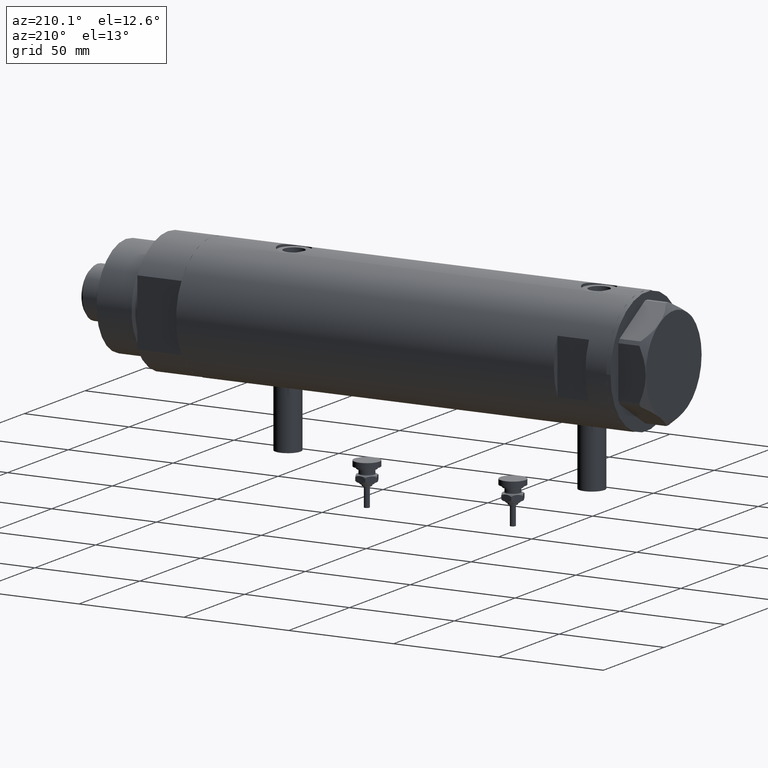
[diagram: clean part render]
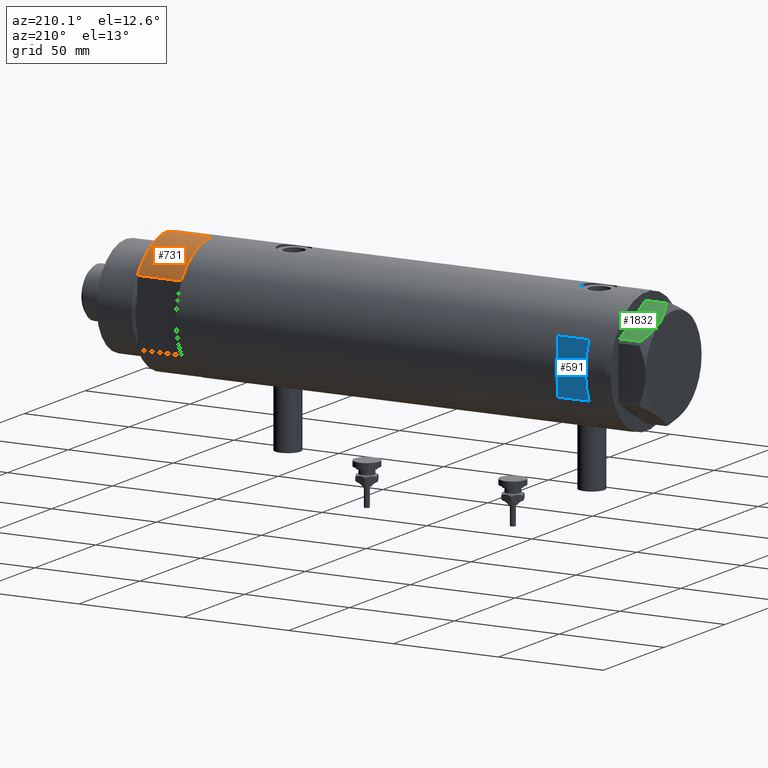
[diagram: same view with three faces highlighted in distinct colors, each labeled with its STEP entity id]
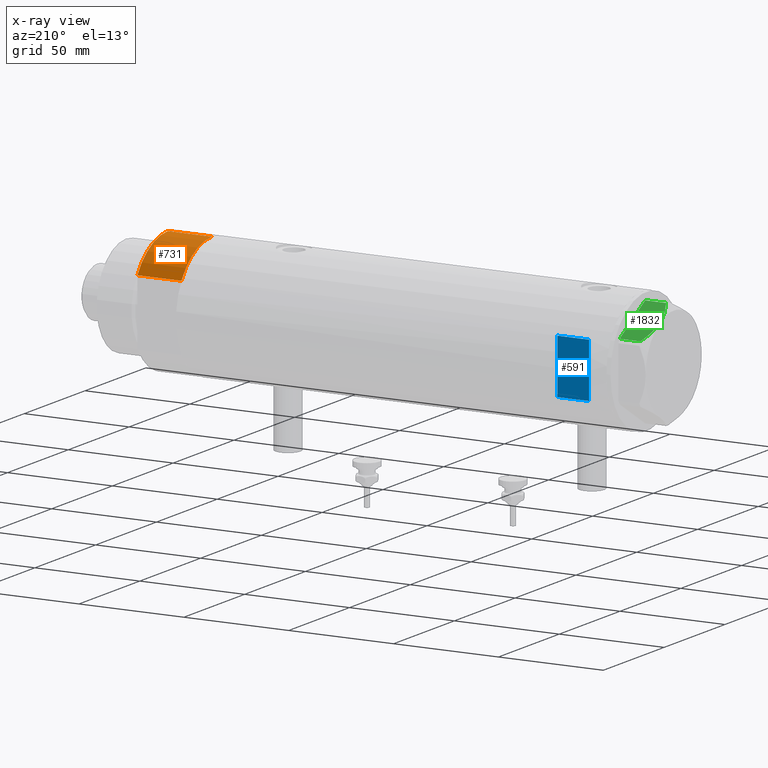
[diagram: x-ray of the same camera — body ghosted, the three highlighted faces saturated]
A machine part, auxiliary view with three faces highlighted in distinct colors.
The next image is the same camera in x-ray (body ghosted, the three faces saturated) — at least one of them is partly hidden behind the body in this view.
Their STEP definitions:

[orange] entity #731 — the highlighted cylindrical surface (partial cylindrical patch) has radius 29.5 mm, axis along (-1, -0, 0).
#8 = LINE ( 'NONE', #5428, #5344 ) ;
#19 = CARTESIAN_POINT ( 'NONE',  ( 0.000000000000000000, 0.000000000000000000, 21.00000000000000000 ) ) ;
#132 = EDGE_LOOP ( 'NONE', ( #777, #400, #1170, #1861 ) ) ;
#373 = CIRCLE ( 'NONE', #4849, 29.50000000000000355 ) ;
#400 = ORIENTED_EDGE ( 'NONE', *, *, #550, .F. ) ;
#550 = EDGE_CURVE ( 'NONE', #3220, #1405, #5812, .T. ) ;
#604 = VERTEX_POINT ( 'NONE', #3075 ) ;
#731 = ADVANCED_FACE ( 'NONE', ( #4167 ), #1976, .T. ) ;
#777 = ORIENTED_EDGE ( 'NONE', *, *, #1294, .F. ) ;
#1170 = ORIENTED_EDGE ( 'NONE', *, *, #3854, .F. ) ;
#1294 = EDGE_CURVE ( 'NONE', #1405, #3422, #1492, .T. ) ;
#1405 = VERTEX_POINT ( 'NONE', #3707 ) ;
#1419 = DIRECTION ( 'NONE',  ( -0.000000000000000000, -0.000000000000000000, 1.000000000000000000 ) ) ;
#1492 = LINE ( 'NONE', #1521, #4468 ) ;
#1521 = CARTESIAN_POINT ( 'NONE',  ( -29.50000000000000355, 0.000000000000000000, 21.00000000000000000 ) ) ;
#1620 = AXIS2_PLACEMENT_3D ( 'NONE', #3300, #5631, #2329 ) ;
#1861 = ORIENTED_EDGE ( 'NONE', *, *, #3667, .T. ) ;
#1976 = CYLINDRICAL_SURFACE ( 'NONE', #1620, 29.50000000000000355 ) ;
#2129 = DIRECTION ( 'NONE',  ( 0.000000000000000000, 0.000000000000000000, 1.000000000000000000 ) ) ;
#2179 = DIRECTION ( 'NONE',  ( 1.000000000000000000, 0.000000000000000000, 0.000000000000000000 ) ) ;
#2329 = DIRECTION ( 'NONE',  ( -1.000000000000000000, 0.000000000000000000, 0.000000000000000000 ) ) ;
#2652 = AXIS2_PLACEMENT_3D ( 'NONE', #19, #2658, #2179 ) ;
#2658 = DIRECTION ( 'NONE',  ( 0.000000000000000000, 0.000000000000000000, 1.000000000000000000 ) ) ;
#3016 = DIRECTION ( 'NONE',  ( 1.000000000000000000, 0.000000000000000000, 0.000000000000000000 ) ) ;
#3075 = CARTESIAN_POINT ( 'NONE',  ( -15.66045976336583401, 25.00000000000000000, 0.000000000000000000 ) ) ;
#3220 = VERTEX_POINT ( 'NONE', #5769 ) ;
#3300 = CARTESIAN_POINT ( 'NONE',  ( 0.000000000000000000, 0.000000000000000000, 21.00000000000000000 ) ) ;
#3422 = VERTEX_POINT ( 'NONE', #5213 ) ;
#3667 = EDGE_CURVE ( 'NONE', #604, #3422, #373, .T. ) ;
#3707 = CARTESIAN_POINT ( 'NONE',  ( -29.50000000000000355, 0.000000000000000000, 21.00000000000000000 ) ) ;
#3854 = EDGE_CURVE ( 'NONE', #604, #3220, #8, .T. ) ;
#3939 = CARTESIAN_POINT ( 'NONE',  ( 0.000000000000000000, 0.000000000000000000, 0.000000000000000000 ) ) ;
#4167 = FACE_OUTER_BOUND ( 'NONE', #132, .T. ) ;
#4468 = VECTOR ( 'NONE', #5073, 1000.000000000000000 ) ;
#4849 = AXIS2_PLACEMENT_3D ( 'NONE', #3939, #2129, #3016 ) ;
#5073 = DIRECTION ( 'NONE',  ( -0.000000000000000000, -0.000000000000000000, -1.000000000000000000 ) ) ;
#5213 = CARTESIAN_POINT ( 'NONE',  ( -29.50000000000000355, 0.000000000000000000, 0.000000000000000000 ) ) ;
#5344 = VECTOR ( 'NONE', #1419, 1000.000000000000000 ) ;
#5428 = CARTESIAN_POINT ( 'NONE',  ( -15.66045976336583401, 25.00000000000000000, 0.000000000000000000 ) ) ;
#5631 = DIRECTION ( 'NONE',  ( -0.000000000000000000, -0.000000000000000000, -1.000000000000000000 ) ) ;
#5769 = CARTESIAN_POINT ( 'NONE',  ( -15.66045976336583045, 24.99999999999999645, 21.00000000000000355 ) ) ;
#5812 = CIRCLE ( 'NONE', #2652, 29.50000000000000355 ) ;

[blue] entity #591 — the highlighted planar face has unit normal (0, -1, -0).
#197 = LINE ( 'NONE', #4722, #3621 ) ;
#591 = ADVANCED_FACE ( 'NONE', ( #5901 ), #3660, .F. ) ;
#782 = VERTEX_POINT ( 'NONE', #3248 ) ;
#1278 = DIRECTION ( 'NONE',  ( 0.000000000000000000, 0.000000000000000000, -1.000000000000000000 ) ) ;
#1296 = ORIENTED_EDGE ( 'NONE', *, *, #3572, .T. ) ;
#1500 = VERTEX_POINT ( 'NONE', #5820 ) ;
#1603 = DIRECTION ( 'NONE',  ( 0.000000000000000000, 0.000000000000000000, 1.000000000000000000 ) ) ;
#1613 = LINE ( 'NONE', #5771, #2008 ) ;
#2008 = VECTOR ( 'NONE', #2505, 1000.000000000000000 ) ;
#2140 = VERTEX_POINT ( 'NONE', #3968 ) ;
#2156 = EDGE_CURVE ( 'NONE', #1500, #782, #3364, .T. ) ;
#2385 = DIRECTION ( 'NONE',  ( 1.000000000000000000, -0.000000000000000000, -0.000000000000000000 ) ) ;
#2505 = DIRECTION ( 'NONE',  ( -0.000000000000000000, -0.000000000000000000, -1.000000000000000000 ) ) ;
#2642 = CARTESIAN_POINT ( 'NONE',  ( -12.96148139681574030, 26.50000000000000355, 77.59999999999999432 ) ) ;
#2791 = DIRECTION ( 'NONE',  ( 1.000000000000000000, -0.000000000000000000, -0.000000000000000000 ) ) ;
#2926 = ORIENTED_EDGE ( 'NONE', *, *, #4624, .T. ) ;
#3219 = VERTEX_POINT ( 'NONE', #2642 ) ;
#3225 = VECTOR ( 'NONE', #1603, 1000.000000000000000 ) ;
#3248 = CARTESIAN_POINT ( 'NONE',  ( 12.96148139681573319, 26.49999999999998934, 92.59999999999999432 ) ) ;
#3364 = LINE ( 'NONE', #5718, #3706 ) ;
#3572 = EDGE_CURVE ( 'NONE', #3219, #1500, #3852, .T. ) ;
#3621 = VECTOR ( 'NONE', #2791, 1000.000000000000000 ) ;
#3660 = PLANE ( 'NONE',  #5138 ) ;
#3706 = VECTOR ( 'NONE', #2385, 1000.000000000000000 ) ;
#3723 = ORIENTED_EDGE ( 'NONE', *, *, #4924, .F. ) ;
#3852 = LINE ( 'NONE', #4217, #3225 ) ;
#3968 = CARTESIAN_POINT ( 'NONE',  ( 12.96148139681571898, 26.50000000000000355, 77.59999999999999432 ) ) ;
#4217 = CARTESIAN_POINT ( 'NONE',  ( -12.96148139681573319, 26.49999999999999645, -102.5999999999999943 ) ) ;
#4505 = CARTESIAN_POINT ( 'NONE',  ( -29.50000000000000355, 26.50000000000000355, 92.59999999999999432 ) ) ;
#4562 = DIRECTION ( 'NONE',  ( 0.000000000000000000, -1.000000000000000000, -0.000000000000000000 ) ) ;
#4624 = EDGE_CURVE ( 'NONE', #782, #2140, #1613, .T. ) ;
#4713 = EDGE_LOOP ( 'NONE', ( #2926, #3723, #1296, #4768 ) ) ;
#4722 = CARTESIAN_POINT ( 'NONE',  ( -29.50000000000000355, 26.50000000000000355, 77.59999999999999432 ) ) ;
#4768 = ORIENTED_EDGE ( 'NONE', *, *, #2156, .T. ) ;
#4924 = EDGE_CURVE ( 'NONE', #3219, #2140, #197, .T. ) ;
#5138 = AXIS2_PLACEMENT_3D ( 'NONE', #4505, #4562, #1278 ) ;
#5718 = CARTESIAN_POINT ( 'NONE',  ( -29.50000000000000355, 26.50000000000000355, 92.59999999999999432 ) ) ;
#5771 = CARTESIAN_POINT ( 'NONE',  ( 12.96148139681573319, 26.49999999999999645, -102.5999999999999943 ) ) ;
#5820 = CARTESIAN_POINT ( 'NONE',  ( -12.96148139681573319, 26.49999999999998934, 92.59999999999999432 ) ) ;
#5901 = FACE_OUTER_BOUND ( 'NONE', #4713, .T. ) ;

[green] entity #1832 — the highlighted planar face has unit normal (-0, -0.5, -0.866).
#63 = B_SPLINE_CURVE_WITH_KNOTS ( 'NONE', 3,
 ( #3287, #646, #5125, #2020, #617, #3826, #5096, #1045, #3763, #4277 ),
 .UNSPECIFIED., .F., .F.,
 ( 4, 2, 2, 2, 4 ),
 ( 0.001228959670438509785, 0.007497079744270810156, 0.01063113978118696706, 0.01219816979964504465, 0.01376519981810312224 ),
 .UNSPECIFIED. ) ;
#139 = EDGE_CURVE ( 'NONE', #2542, #5665, #1695, .T. ) ;
#153 = PLANE ( 'NONE',  #1349 ) ;
#155 = CARTESIAN_POINT ( 'NONE',  ( 18.64279229058406173, -15.79469123530766517, 11.57055225522972286 ) ) ;
#302 = CARTESIAN_POINT ( 'NONE',  ( 19.07486218897005870, -15.54523556316577171, 11.39727285399141365 ) ) ;
#378 = VECTOR ( 'NONE', #1554, 1000.000000000000000 ) ;
#379 = DIRECTION ( 'NONE',  ( 0.8660254037844345998, 0.5000000000000069944, 0.000000000000000000 ) ) ;
#412 = CARTESIAN_POINT ( 'NONE',  ( 0.9699484522387532559, -25.99811238272273428, 13.00000000000000000 ) ) ;
#434 = EDGE_CURVE ( 'NONE', #2467, #4503, #2599, .T. ) ;
#533 = ORIENTED_EDGE ( 'NONE', *, *, #1182, .T. ) ;
#617 = CARTESIAN_POINT ( 'NONE',  ( 7.836767740116727943, -22.03355241838979595, 12.63731396715694544 ) ) ;
#623 = ORIENTED_EDGE ( 'NONE', *, *, #139, .T. ) ;
#646 = CARTESIAN_POINT ( 'NONE',  ( 2.626494320835804253, -25.04170517956326236, 10.87778242614345636 ) ) ;
#831 = DIRECTION ( 'NONE',  ( 0.000000000000000000, 0.000000000000000000, -1.000000000000000000 ) ) ;
#924 = LINE ( 'NONE', #412, #3510 ) ;
#988 = LINE ( 'NONE', #4248, #378 ) ;
#1022 = EDGE_LOOP ( 'NONE', ( #3372, #533, #623, #4900, #1680 ) ) ;
#1045 = CARTESIAN_POINT ( 'NONE',  ( 10.58093321976977030, -20.44920774001120023, 12.98168640760949799 ) ) ;
#1182 = EDGE_CURVE ( 'NONE', #1940, #2542, #924, .T. ) ;
#1349 = AXIS2_PLACEMENT_3D ( 'NONE', #5184, #3310, #5519 ) ;
#1369 = EDGE_CURVE ( 'NONE', #5665, #4503, #988, .T. ) ;
#1554 = DIRECTION ( 'NONE',  ( 0.000000000000000000, 0.000000000000000000, 1.000000000000000000 ) ) ;
#1616 = VECTOR ( 'NONE', #379, 999.9999999999998863 ) ;
#1680 = ORIENTED_EDGE ( 'NONE', *, *, #434, .F. ) ;
#1695 = LINE ( 'NONE', #3061, #1616 ) ;
#1832 = ADVANCED_FACE ( 'NONE', ( #5151 ), #153, .F. ) ;
#1940 = VERTEX_POINT ( 'NONE', #3698 ) ;
#2020 = CARTESIAN_POINT ( 'NONE',  ( 6.946777556903778184, -22.54738849024392877, 12.42689993760377654 ) ) ;
#2125 = CARTESIAN_POINT ( 'NONE',  ( 21.20080365460329475, -14.31782268570100491, 10.43131750950939107 ) ) ;
#2150 = CARTESIAN_POINT ( 'NONE',  ( 22.03005154776154129, -13.83905619136115384, 9.983800287807621743 ) ) ;
#2467 = VERTEX_POINT ( 'NONE', #2683 ) ;
#2542 = VERTEX_POINT ( 'NONE', #3093 ) ;
#2599 = B_SPLINE_CURVE_WITH_KNOTS ( 'NONE', 3,
 ( #5156, #2988, #2604, #4812, #4418, #155, #302, #2877, #2125, #2150 ),
 .UNSPECIFIED., .F., .F.,
 ( 4, 2, 2, 2, 4 ),
 ( 0.01376519981810312224, 0.01998941321701590279, 0.02154546656674409533, 0.02310151991647228786, 0.02621362661592867294 ),
 .UNSPECIFIED. ) ;
#2604 = CARTESIAN_POINT ( 'NONE',  ( 15.11535457301044616, -17.83125835109845880, 12.70765172847700342 ) ) ;
#2660 = CARTESIAN_POINT ( 'NONE',  ( 22.03005154776153773, -13.83905619136115561, 0.000000000000000000 ) ) ;
#2683 = CARTESIAN_POINT ( 'NONE',  ( 11.50000000000018296, -19.91858428704203732, 13.00000000000000000 ) ) ;
#2877 = CARTESIAN_POINT ( 'NONE',  ( 20.35958612119338085, -14.80349985506226673, 10.84420102443838552 ) ) ;
#2988 = CARTESIAN_POINT ( 'NONE',  ( 13.32175508098997518, -18.86679350063487703, 13.00000000000009059 ) ) ;
#3061 = CARTESIAN_POINT ( 'NONE',  ( 1.854543075583504180E-13, -26.55811238272274366, 0.000000000000000000 ) ) ;
#3093 = CARTESIAN_POINT ( 'NONE',  ( 0.9699484522387533669, -25.99811238272273428, 0.000000000000000000 ) ) ;
#3287 = CARTESIAN_POINT ( 'NONE',  ( 0.9699484522386113694, -25.99811238272281955, 9.983800287807545359 ) ) ;
#3310 = DIRECTION ( 'NONE',  ( -0.5000000000000069944, 0.8660254037844345998, 0.000000000000000000 ) ) ;
#3372 = ORIENTED_EDGE ( 'NONE', *, *, #4983, .F. ) ;
#3510 = VECTOR ( 'NONE', #831, 1000.000000000000000 ) ;
#3698 = CARTESIAN_POINT ( 'NONE',  ( 0.9699484522386113694, -25.99811238272281955, 9.983800287807545359 ) ) ;
#3763 = CARTESIAN_POINT ( 'NONE',  ( 11.04134848610952879, -20.18338686205092358, 13.00000000000009059 ) ) ;
#3826 = CARTESIAN_POINT ( 'NONE',  ( 9.197898616903064095, -21.24770314027487927, 12.85271263895580240 ) ) ;
#4120 = CARTESIAN_POINT ( 'NONE',  ( 22.03005154776154129, -13.83905619136115384, 9.983800287807621743 ) ) ;
#4248 = CARTESIAN_POINT ( 'NONE',  ( 22.03005154776153773, -13.83905619136115739, 13.00000000000000000 ) ) ;
#4277 = CARTESIAN_POINT ( 'NONE',  ( 11.50000000000018296, -19.91858428704203732, 13.00000000000000000 ) ) ;
#4418 = CARTESIAN_POINT ( 'NONE',  ( 17.77001848220202618, -16.29858742851869735, 11.89212886775844780 ) ) ;
#4503 = VERTEX_POINT ( 'NONE', #4120 ) ;
#4812 = CARTESIAN_POINT ( 'NONE',  ( 17.32831362639728923, -16.55360584591992890, 12.04068176582933525 ) ) ;
#4900 = ORIENTED_EDGE ( 'NONE', *, *, #1369, .T. ) ;
#4983 = EDGE_CURVE ( 'NONE', #1940, #2467, #63, .T. ) ;
#5096 = CARTESIAN_POINT ( 'NONE',  ( 9.656518383329991906, -20.98291889467260773, 12.90784227772843451 ) ) ;
#5125 = CARTESIAN_POINT ( 'NONE',  ( 4.320186229910045306, -24.06385169993492568, 11.62937486882610649 ) ) ;
#5151 = FACE_OUTER_BOUND ( 'NONE', #1022, .T. ) ;
#5156 = CARTESIAN_POINT ( 'NONE',  ( 11.50000000000018296, -19.91858428704203732, 13.00000000000000000 ) ) ;
#5184 = CARTESIAN_POINT ( 'NONE',  ( 1.854543075583504180E-13, -26.55811238272274366, 13.00000000000000000 ) ) ;
#5519 = DIRECTION ( 'NONE',  ( -0.8660254037844345998, -0.5000000000000069944, 0.000000000000000000 ) ) ;
#5665 = VERTEX_POINT ( 'NONE', #2660 ) ;